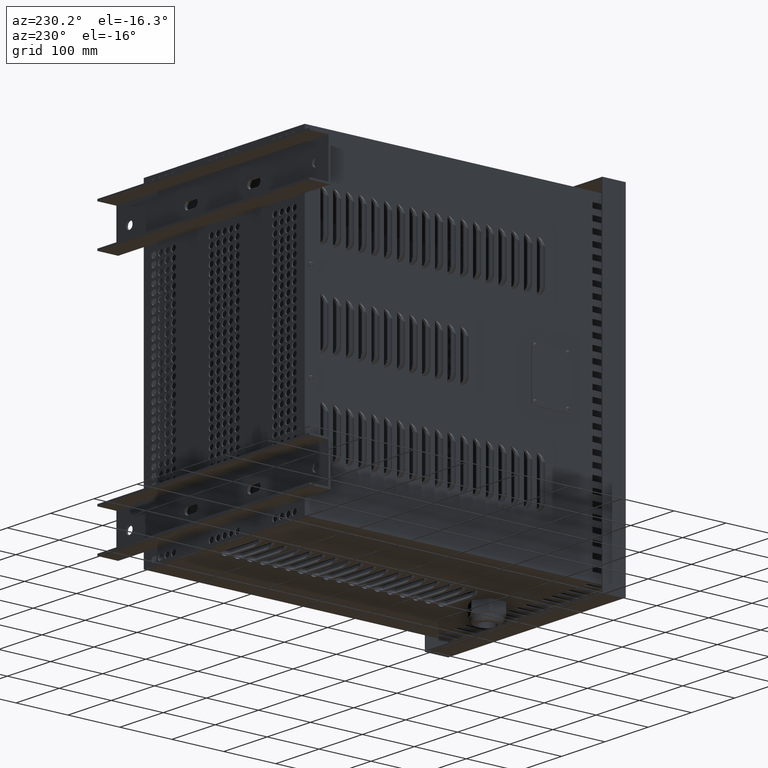
[diagram: clean part render]
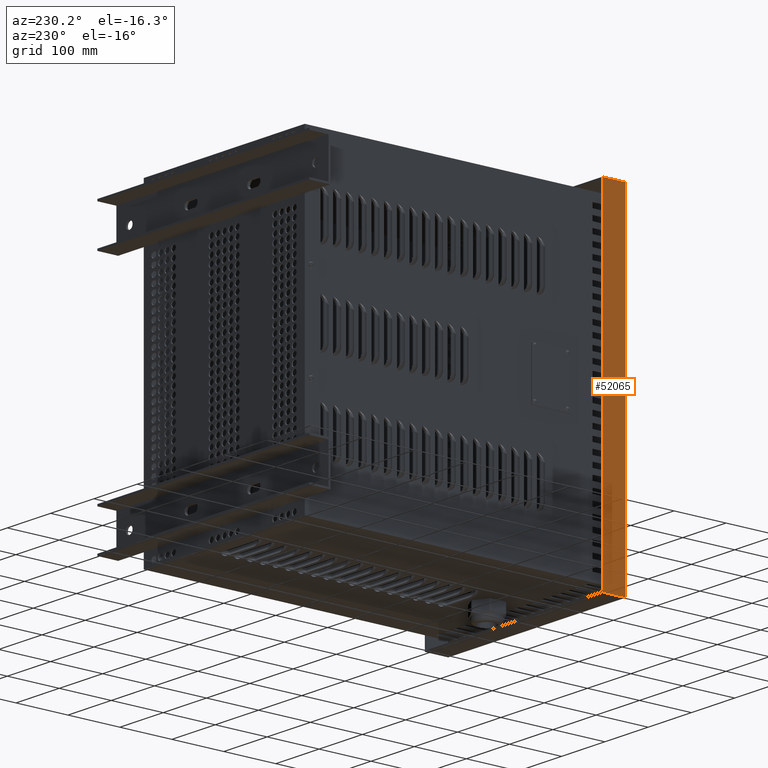
[diagram: same view with one face highlighted and labeled with its STEP entity id]
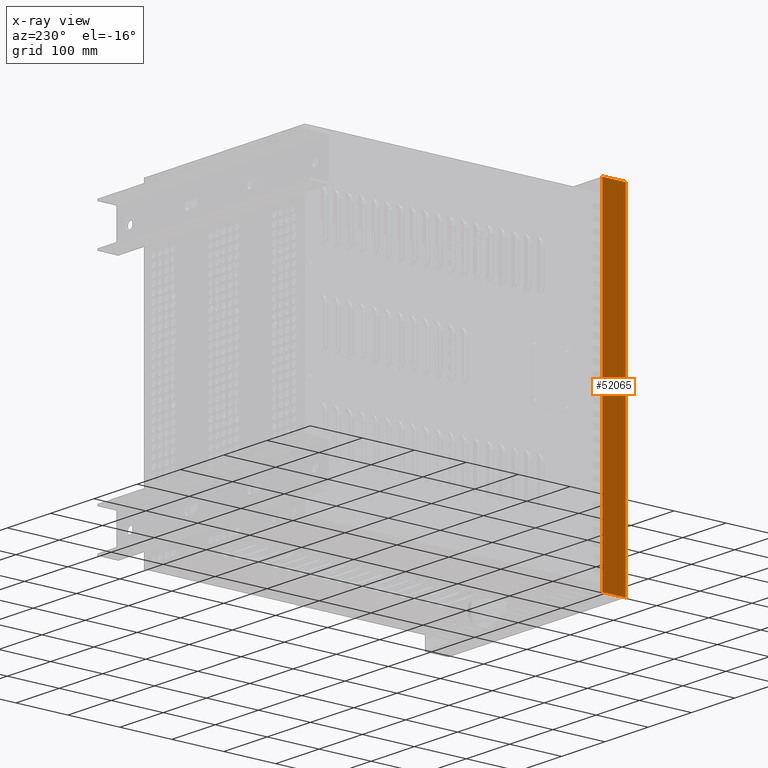
[diagram: x-ray of the same camera — body ghosted, the highlighted face saturated]
A machine part, auxiliary view. The second image highlights one B-rep face of the part: STEP entity #52065.
The next image is the same camera in x-ray: the body ghosted, the highlighted face saturated — about 0% of this face is hidden behind the body in this view.
In plain terms, the highlighted planar face has unit normal (-1, 0, 0).
Its self-contained STEP definition (entity closure, byte-faithful):
#10888=FACE_OUTER_BOUND('',#14702,.T.);
#14702=EDGE_LOOP('',(#47864,#47865,#47866,#47867));
#18677=LINE('',#89535,#22630);
#18685=LINE('',#89550,#22638);
#18686=LINE('',#89552,#22639);
#18687=LINE('',#89553,#22640);
#22630=VECTOR('',#71049,10.);
#22638=VECTOR('',#71061,10.);
#22639=VECTOR('',#71064,10.);
#22640=VECTOR('',#71065,10.);
#27093=VERTEX_POINT('',#89532);
#27094=VERTEX_POINT('',#89534);
#27098=VERTEX_POINT('',#89546);
#27099=VERTEX_POINT('',#89548);
#34055=EDGE_CURVE('',#27093,#27094,#18677,.T.);
#34063=EDGE_CURVE('',#27098,#27099,#18685,.T.);
#34064=EDGE_CURVE('',#27093,#27098,#18686,.T.);
#34065=EDGE_CURVE('',#27094,#27099,#18687,.T.);
#47864=ORIENTED_EDGE('',*,*,#34064,.T.);
#47865=ORIENTED_EDGE('',*,*,#34063,.T.);
#47866=ORIENTED_EDGE('',*,*,#34065,.F.);
#47867=ORIENTED_EDGE('',*,*,#34055,.F.);
#49578=PLANE('',#57288);
#52065=ADVANCED_FACE('',(#10888),#49578,.T.);
#57288=AXIS2_PLACEMENT_3D('',#89551,#71062,#71063);
#71049=DIRECTION('',(0.,1.,0.));
#71061=DIRECTION('',(0.,1.,0.));
#71062=DIRECTION('center_axis',(-1.,0.,2.22044604925031E-16));
#71063=DIRECTION('ref_axis',(2.22044604925031E-16,0.,1.));
#71064=DIRECTION('',(2.22044604925031E-16,0.,1.));
#71065=DIRECTION('',(2.22044604925031E-16,0.,1.));
#89532=CARTESIAN_POINT('',(-410.,0.,0.));
#89534=CARTESIAN_POINT('',(-410.,45.,0.));
#89535=CARTESIAN_POINT('',(-410.,0.,0.));
#89546=CARTESIAN_POINT('',(-410.,0.,640.));
#89548=CARTESIAN_POINT('',(-410.,45.,640.));
#89550=CARTESIAN_POINT('',(-410.,0.,640.));
#89551=CARTESIAN_POINT('Origin',(-410.,0.,0.));
#89552=CARTESIAN_POINT('',(-410.,0.,0.));
#89553=CARTESIAN_POINT('',(-410.,45.,0.));